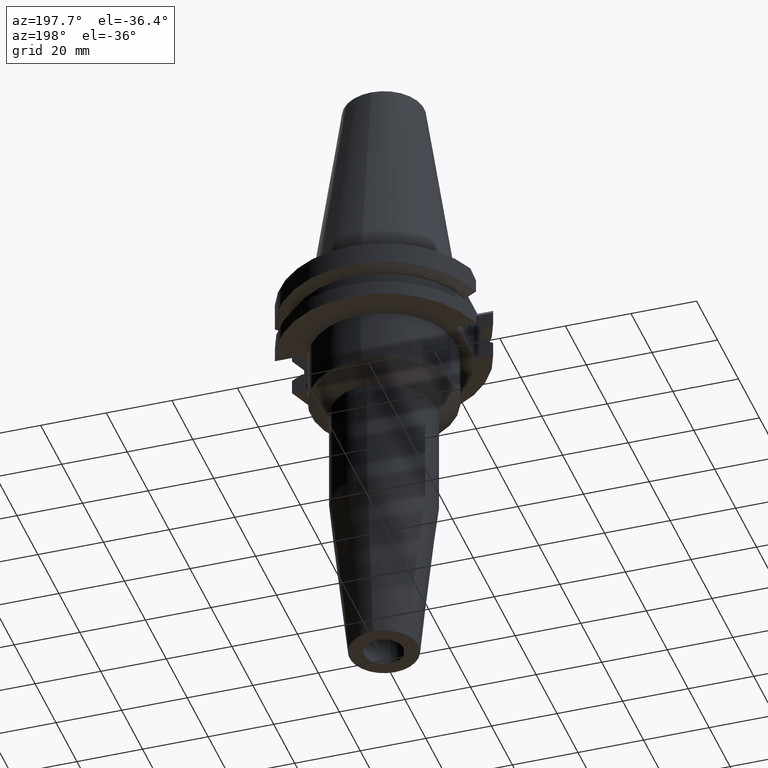
[diagram: clean part render]
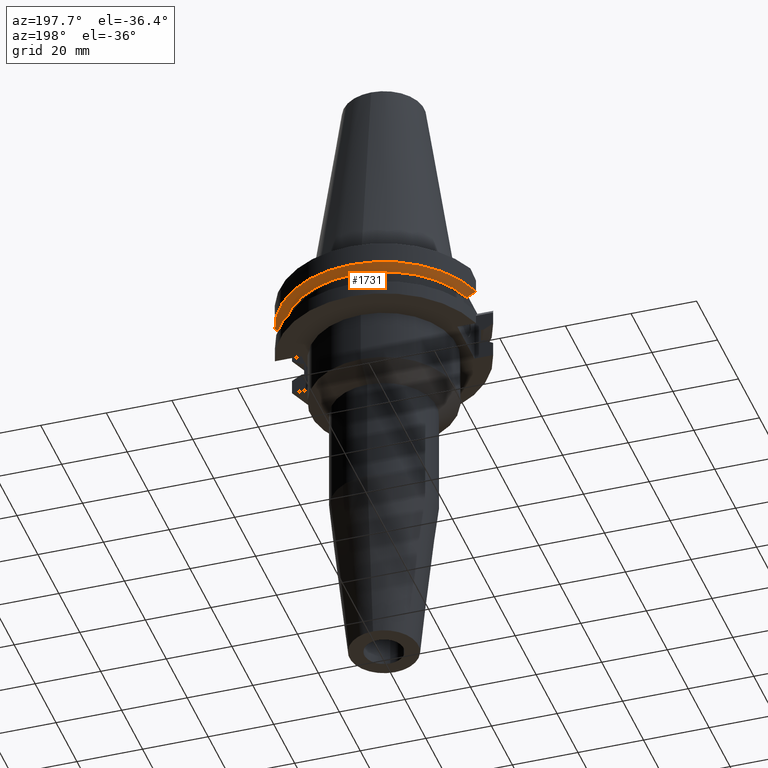
[diagram: same view with one face highlighted and labeled with its STEP entity id]
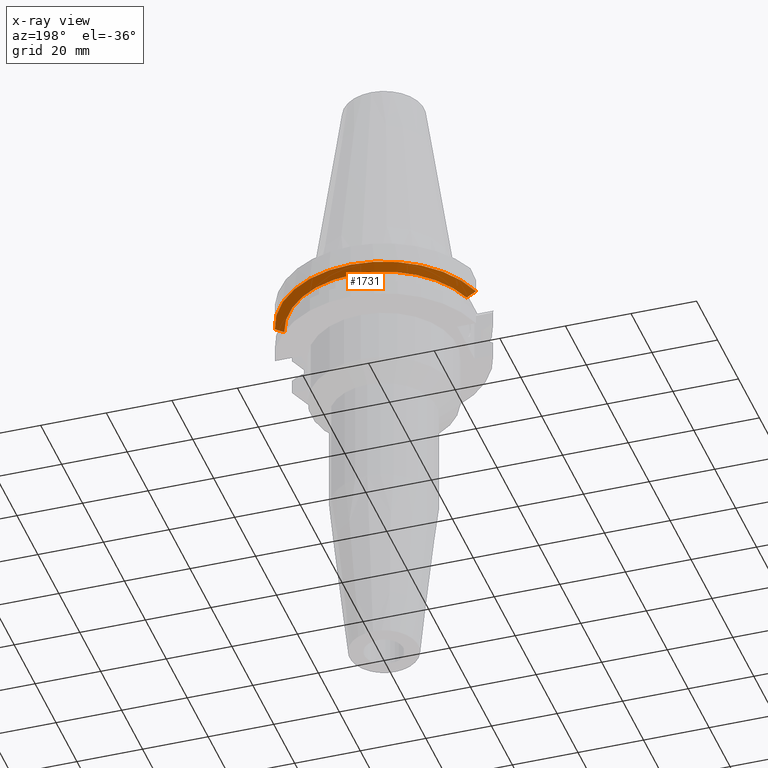
[diagram: x-ray of the same camera — body ghosted, the highlighted face saturated]
A machine part, auxiliary view. The second image highlights one B-rep face of the part: STEP entity #1731.
The next image is the same camera in x-ray: the body ghosted, the highlighted face saturated — about 0% of this face is hidden behind the body in this view.
In plain terms, the highlighted conical surface has half-angle 60 deg.
Its self-contained STEP definition (entity closure, byte-faithful):
#267=CARTESIAN_POINT('',(3.067550165945E1,8.189999874299E0,-7.601334354242E0));
#268=CARTESIAN_POINT('',(3.035472638214E1,8.189999874299E0,-7.780266432774E0));
#269=CARTESIAN_POINT('',(2.971302863437E1,8.189999973362E0,-8.137871222803E0));
#270=CARTESIAN_POINT('',(2.874990664161E1,8.190000281786E0,-8.673237294495E0));
#271=CARTESIAN_POINT('',(2.810748974249E1,8.189999360258E0,-9.029558666463E0));
#272=CARTESIAN_POINT('',(2.778617704643E1,8.189999360258E0,-9.207500000001E0));
#379=CARTESIAN_POINT('',(-2.778616453793E1,8.190000190958E0,-9.207500000001E0));
#380=CARTESIAN_POINT('',(-2.810749132268E1,8.190000190958E0,-9.029550868922E0));
#381=CARTESIAN_POINT('',(-2.874991655633E1,8.189999991735E0,-8.673260600668E0));
#382=CARTESIAN_POINT('',(-2.971304241096E1,8.189999742488E0,-8.137892857997E0));
#383=CARTESIAN_POINT('',(-3.0354722E1,8.190000606371E0,-7.780262222532E0));
#384=CARTESIAN_POINT('',(-3.067550146400E1,8.190000606371E0,-7.601327812044E0));
#513=CARTESIAN_POINT('',(0.E0,1.121722380079E-14,-9.207500000003E0));
#514=DIRECTION('',(0.E0,0.E0,1.E0));
#515=DIRECTION('',(9.592008904640E-1,2.827253998727E-1,0.E0));
#516=AXIS2_PLACEMENT_3D('',#513,#514,#515);
#521=CARTESIAN_POINT('',(0.E0,1.121722380079E-14,-9.207500000003E0));
#522=DIRECTION('',(0.E0,0.E0,1.E0));
#523=DIRECTION('',(0.E0,1.E0,0.E0));
#524=AXIS2_PLACEMENT_3D('',#521,#522,#523);
#545=CARTESIAN_POINT('',(0.E0,1.121722380079E-14,-7.601333230926E0));
#546=DIRECTION('',(0.E0,0.E0,1.E0));
#547=DIRECTION('',(9.661575315241E-1,2.579527559055E-1,0.E0));
#548=AXIS2_PLACEMENT_3D('',#545,#546,#547);
#553=CARTESIAN_POINT('',(0.E0,1.121722380079E-14,-7.601333230926E0));
#554=DIRECTION('',(0.E0,0.E0,1.E0));
#555=DIRECTION('',(0.E0,1.E0,0.E0));
#556=AXIS2_PLACEMENT_3D('',#553,#554,#555);
#1304=CARTESIAN_POINT('',(-2.778616453793E1,8.190000190958E0,
-9.207500000001E0));
#1305=VERTEX_POINT('',#1304);
#1306=VERTEX_POINT('',#384);
#1328=CARTESIAN_POINT('',(2.778617704643E1,8.189999360258E0,-9.207500000001E0));
#1329=VERTEX_POINT('',#1328);
#1330=CARTESIAN_POINT('',(3.537899182731E-14,2.896803755053E1,
-9.207500000003E0));
#1331=VERTEX_POINT('',#1330);
#1334=VERTEX_POINT('',#267);
#1335=CARTESIAN_POINT('',(0.E0,3.175E1,-7.601333230926E0));
#1336=VERTEX_POINT('',#1335);
#1718=CARTESIAN_POINT('',(0.E0,1.121722380079E-14,-8.404416615464E0));
#1719=DIRECTION('',(0.E0,0.E0,1.E0));
#1720=DIRECTION('',(0.E0,1.E0,0.E0));
#1721=AXIS2_PLACEMENT_3D('',#1718,#1719,#1720);
#1722=CONICAL_SURFACE('',#1721,3.035901877527E1,6.E1);
#1723=ORIENTED_EDGE('',*,*,#1529,.F.);
#1724=ORIENTED_EDGE('',*,*,#1572,.T.);
#1725=ORIENTED_EDGE('',*,*,#1570,.T.);
#1726=ORIENTED_EDGE('',*,*,#1630,.F.);
#1727=ORIENTED_EDGE('',*,*,#1710,.F.);
#1728=ORIENTED_EDGE('',*,*,#1708,.F.);
#1729=EDGE_LOOP('',(#1723,#1724,#1725,#1726,#1727,#1728));
#1730=FACE_OUTER_BOUND('',#1729,.F.);
#273=B_SPLINE_CURVE_WITH_KNOTS('',3,(#267,#268,#269,#270,#271,#272),
.UNSPECIFIED.,.F.,.F.,(4,1,1,4),(0.E0,3.333333333333E-1,6.666666666667E-1,1.E0),
.UNSPECIFIED.);
#385=B_SPLINE_CURVE_WITH_KNOTS('',3,(#379,#380,#381,#382,#383,#384),
.UNSPECIFIED.,.F.,.F.,(4,1,1,4),(0.E0,3.333333333333E-1,6.666666666667E-1,1.E0),
.UNSPECIFIED.);
#517=CIRCLE('',#516,2.896803755053E1);
#525=CIRCLE('',#524,2.896803755053E1);
#549=CIRCLE('',#548,3.175E1);
#557=CIRCLE('',#556,3.175E1);
#1529=EDGE_CURVE('',#1334,#1329,#273,.T.);
#1570=EDGE_CURVE('',#1336,#1306,#557,.T.);
#1572=EDGE_CURVE('',#1334,#1336,#549,.T.);
#1630=EDGE_CURVE('',#1305,#1306,#385,.T.);
#1708=EDGE_CURVE('',#1329,#1331,#517,.T.);
#1710=EDGE_CURVE('',#1331,#1305,#525,.T.);
#1731=ADVANCED_FACE('',(#1730),#1722,.T.);